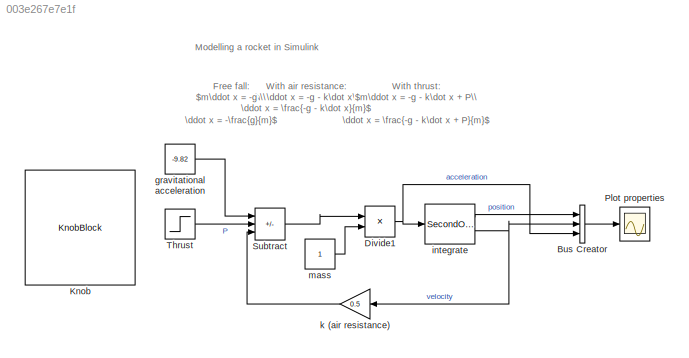
MODEL slx_003e267e7e1f
KIND model
CONFIG AbsTol = auto
CONFIG EnableMultiTasking = off
CONFIG FixedStep = auto
CONFIG MaxStep = auto
CONFIG MinStep = auto
CONFIG RelTol = 1e-3
CONFIG SampleTimeConstraint = Unconstrained
CONFIG Solver = VariableStepAuto
CONFIG SolverName = VariableStepAuto
CONFIG StartTime = 0.0
CONFIG StopTime = 10.0
BLOCK [BusCreator] Bus Creator
  DisplayOption = bar
  InheritFromInputs = on
  Inputs = 3
  Ports = [3, 1]
BLOCK [Product] Divide1
  Inputs = */
  Ports = [2, 1]
BLOCK [KnobBlock] Knob
BLOCK [Scope] Plot properties
  Floating = off
  NumInputPorts = 1
  Ports = [1]
  ScopeSpecificationString = Simulink.scopes.TimeScopeBlockCfg('CurrentConfiguration', extmgr.ConfigurationSet(extmgr.Configuration('Core','General UI',true),extmgr.Configuration('Core','Source UI',true),extmgr.Configuration('Sources','WiredSimulink',true,'DataLoggingVariableName','ScopeData1'),extmgr.Configuration('Visuals','Time Domain',true,'SerializedDisplays',{struct('MinYLimReal','-45.83687','MaxYLimReal','61.41012','YL...<+1426ch>
BLOCK [Sum] Subtract
  IconShape = rectangular
  Inputs = ++-
  Ports = [3, 1]
BLOCK [Step] Thrust
  After = 0
  Before = 30.92617797851563
  SampleTime = 0
  Time = 2
BLOCK [Constant] gravitational acceleration
  Value = -9.82
BLOCK [SecondOrderIntegrator] integrate
  ICX = 0
  Ports = [1, 2]
BLOCK [Gain] k (air resistance)
  Gain = 0.5
BLOCK [Constant] mass
ANNOTATION (root): Modelling a rocket in Simulink
ANNOTATION (root): Free fall: $m\ddot x = -g \\ \ddot x = -\frac{g}{m}$
ANNOTATION (root): With air resistance: $m\ddot x = -g - k\dot x\\ \ddot x = \frac{-g - k\dot x}{m}$
ANNOTATION (root): With thrust: $m\ddot x = -g - k\dot x + P\\ \ddot x = \frac{-g - k\dot x + P}{m}$
LINE Bus Creator:1 -> Plot properties:1
NET Divide1:1 -> Bus Creator:3, integrate:1
LINE Subtract:1 -> Divide1:1
LINE Thrust:1 -> Subtract:2
LINE gravitational acceleration:1 -> Subtract:1
LINE integrate:1 -> Bus Creator:1
NET integrate:2 -> Bus Creator:2, k (air resistance):1
LINE k (air resistance):1 -> Subtract:3
LINE mass:1 -> Divide1:2
note: NET lines group one-source signal fan-out (src -> all destinations, sorted); 1:1 wires keep LINE
